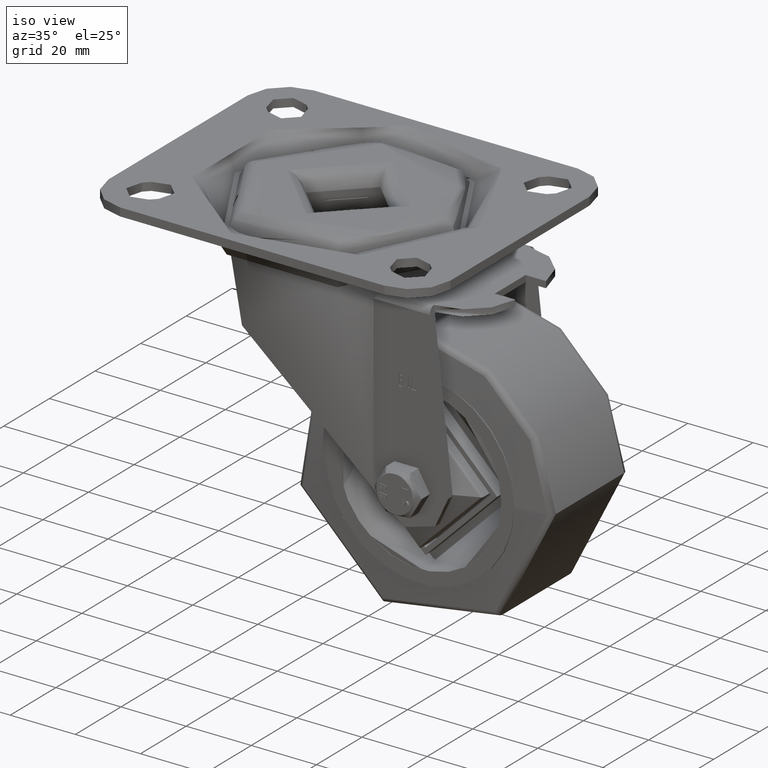
[diagram: clean part render]
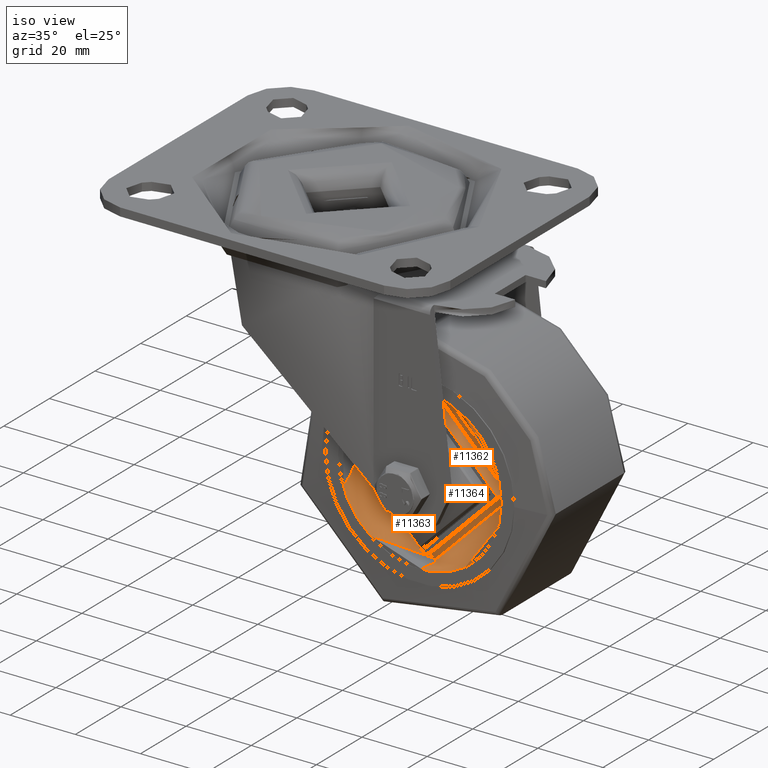
[diagram: same view with one multi-face feature highlighted, each face labeled with its STEP entity id]
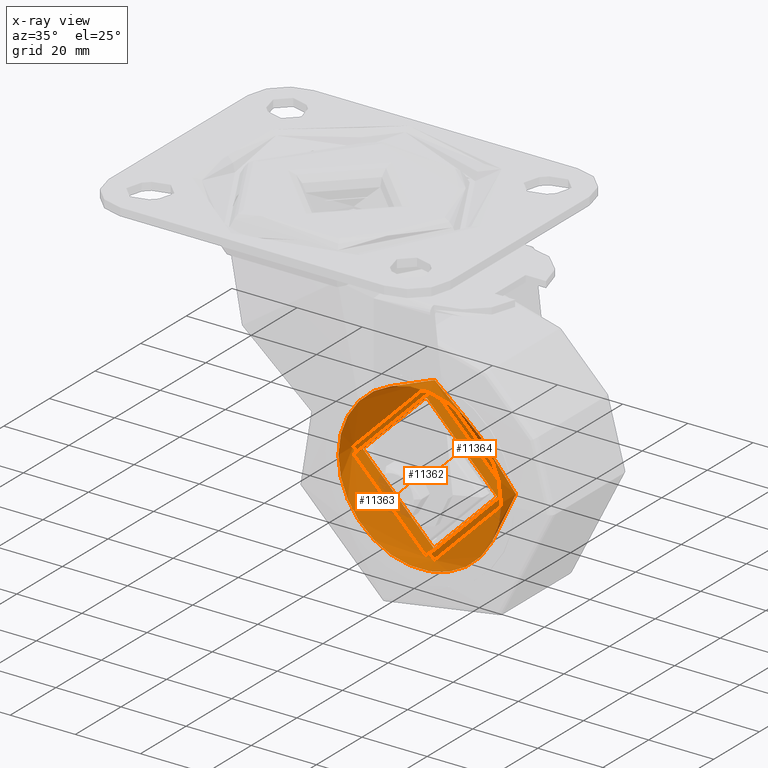
[diagram: x-ray of the same camera — body ghosted, the whole feature saturated]
A machine part, iso view. The highlighted faces form ONE feature: a stepped (counterbored) hole: 2 coaxial cylindrical walls of radii 22 -> 25 mm joined by 1 annular planar shoulder face(s). The faces share edges in the B-rep.
The next image is the same camera in x-ray: the body ghosted and the whole hole feature saturated, so the bore chain is visible through the body.
Their STEP definitions:
[1] entity #11363 (Cylinder):
#1499=FACE_OUTER_BOUND('',#2205,.T.);
#2205=EDGE_LOOP('',(#7849,#7850,#7851,#7852));
#3056=LINE('',#16349,#3789);
#3789=VECTOR('',#13464,25.);
#4541=CIRCLE('',#12302,25.);
#4542=CIRCLE('',#12303,25.);
#5002=VERTEX_POINT('',#16346);
#5003=VERTEX_POINT('',#16348);
#6130=EDGE_CURVE('',#5002,#5002,#4541,.T.);
#6131=EDGE_CURVE('',#5002,#5003,#3056,.T.);
#6132=EDGE_CURVE('',#5003,#5003,#4542,.T.);
#7849=ORIENTED_EDGE('',*,*,#6130,.F.);
#7850=ORIENTED_EDGE('',*,*,#6131,.T.);
#7851=ORIENTED_EDGE('',*,*,#6132,.T.);
#7852=ORIENTED_EDGE('',*,*,#6131,.F.);
#11170=CYLINDRICAL_SURFACE('',#12301,25.);
#11363=ADVANCED_FACE('',(#1499),#11170,.F.);
#12301=AXIS2_PLACEMENT_3D('',#16345,#13460,#13461);
#12302=AXIS2_PLACEMENT_3D('',#16347,#13462,#13463);
#12303=AXIS2_PLACEMENT_3D('',#16350,#13465,#13466);
#13460=DIRECTION('center_axis',(-1.,6.50129834452202E-17,0.));
#13461=DIRECTION('ref_axis',(6.50129834452202E-17,1.,-3.71352796603443E-15));
#13462=DIRECTION('center_axis',(-1.,6.50129834452202E-17,0.));
#13463=DIRECTION('ref_axis',(6.50129834452202E-17,1.,-3.71352796603443E-15));
#13464=DIRECTION('',(-1.,6.50129834452202E-17,0.));
#13465=DIRECTION('center_axis',(-1.,6.50129834452202E-17,0.));
#13466=DIRECTION('ref_axis',(6.50129834452202E-17,1.,-3.71352796603443E-15));
#16345=CARTESIAN_POINT('Origin',(-14.25,9.26435014094387E-16,0.));
#16346=CARTESIAN_POINT('',(-11.,-25.,8.97765821529923E-14));
#16347=CARTESIAN_POINT('Origin',(-11.,7.15142817897421E-16,0.));
#16348=CARTESIAN_POINT('',(-17.5,-25.,8.97765821529923E-14));
#16349=CARTESIAN_POINT('',(-14.25,-25.,9.58998161487291E-14));
#16350=CARTESIAN_POINT('Origin',(-17.5,1.13772721029135E-15,0.));
[2] entity #11362 (Cylinder):
#1498=FACE_OUTER_BOUND('',#2204,.T.);
#2204=EDGE_LOOP('',(#7845,#7846,#7847,#7848));
#3055=LINE('',#16343,#3788);
#3788=VECTOR('',#13457,22.);
#4539=CIRCLE('',#12299,22.);
#4540=CIRCLE('',#12300,22.);
#5000=VERTEX_POINT('',#16340);
#5001=VERTEX_POINT('',#16342);
#6127=EDGE_CURVE('',#5000,#5000,#4539,.T.);
#6128=EDGE_CURVE('',#5000,#5001,#3055,.T.);
#6129=EDGE_CURVE('',#5001,#5001,#4540,.T.);
#7845=ORIENTED_EDGE('',*,*,#6127,.F.);
#7846=ORIENTED_EDGE('',*,*,#6128,.T.);
#7847=ORIENTED_EDGE('',*,*,#6129,.T.);
#7848=ORIENTED_EDGE('',*,*,#6128,.F.);
#11169=CYLINDRICAL_SURFACE('',#12298,22.);
#11362=ADVANCED_FACE('',(#1498),#11169,.T.);
#12298=AXIS2_PLACEMENT_3D('',#16339,#13453,#13454);
#12299=AXIS2_PLACEMENT_3D('',#16341,#13455,#13456);
#12300=AXIS2_PLACEMENT_3D('',#16344,#13458,#13459);
#13453=DIRECTION('center_axis',(-1.,6.50129834452202E-17,0.));
#13454=DIRECTION('ref_axis',(6.50129834452202E-17,1.,-3.71352796603443E-15));
#13455=DIRECTION('center_axis',(-1.,6.50129834452202E-17,0.));
#13456=DIRECTION('ref_axis',(6.50129834452202E-17,1.,-3.71352796603443E-15));
#13457=DIRECTION('',(1.,-6.50129834452202E-17,0.));
#13458=DIRECTION('center_axis',(-1.,6.50129834452202E-17,0.));
#13459=DIRECTION('ref_axis',(6.50129834452202E-17,1.,-3.71352796603443E-15));
#16339=CARTESIAN_POINT('Origin',(-13.,8.45168784787862E-16,0.));
#16340=CARTESIAN_POINT('',(-15.,-22.,7.90033922946332E-14));
#16341=CARTESIAN_POINT('Origin',(-15.,9.75194751678302E-16,0.));
#16342=CARTESIAN_POINT('',(-11.,-22.,7.90033922946332E-14));
#16343=CARTESIAN_POINT('',(-13.,-22.,8.43918382108816E-14));
#16344=CARTESIAN_POINT('Origin',(-11.,7.15142817897421E-16,0.));
[3] entity #11364 (Plane):
#973=FACE_BOUND('',#2207,.T.);
#1120=PLANE('',#12304);
#1500=FACE_OUTER_BOUND('',#2206,.T.);
#2206=EDGE_LOOP('',(#7853));
#2207=EDGE_LOOP('',(#7854));
#4540=CIRCLE('',#12300,22.);
#4541=CIRCLE('',#12302,25.);
#5001=VERTEX_POINT('',#16342);
#5002=VERTEX_POINT('',#16346);
#6129=EDGE_CURVE('',#5001,#5001,#4540,.T.);
#6130=EDGE_CURVE('',#5002,#5002,#4541,.T.);
#7853=ORIENTED_EDGE('',*,*,#6130,.T.);
#7854=ORIENTED_EDGE('',*,*,#6129,.F.);
#11364=ADVANCED_FACE('',(#1500,#973),#1120,.T.);
#12300=AXIS2_PLACEMENT_3D('',#16344,#13458,#13459);
#12302=AXIS2_PLACEMENT_3D('',#16347,#13462,#13463);
#12304=AXIS2_PLACEMENT_3D('',#16351,#13467,#13468);
#13458=DIRECTION('center_axis',(-1.,6.50129834452202E-17,0.));
#13459=DIRECTION('ref_axis',(6.50129834452202E-17,1.,-3.71352796603443E-15));
#13462=DIRECTION('center_axis',(-1.,6.50129834452202E-17,0.));
#13463=DIRECTION('ref_axis',(6.50129834452202E-17,1.,-3.71352796603443E-15));
#13467=DIRECTION('center_axis',(-1.,-4.95970681198243E-61,2.41427532179158E-31));
#13468=DIRECTION('ref_axis',(-4.95970681198243E-61,1.,1.19740977594908E-91));
#16342=CARTESIAN_POINT('',(-11.,-22.,7.90033922946332E-14));
#16344=CARTESIAN_POINT('Origin',(-11.,7.15142817897421E-16,0.));
#16346=CARTESIAN_POINT('',(-11.,-25.,8.97765821529923E-14));
#16347=CARTESIAN_POINT('Origin',(-11.,7.15142817897421E-16,0.));
#16351=CARTESIAN_POINT('Origin',(-11.,23.5,3.08148791101958E-30));